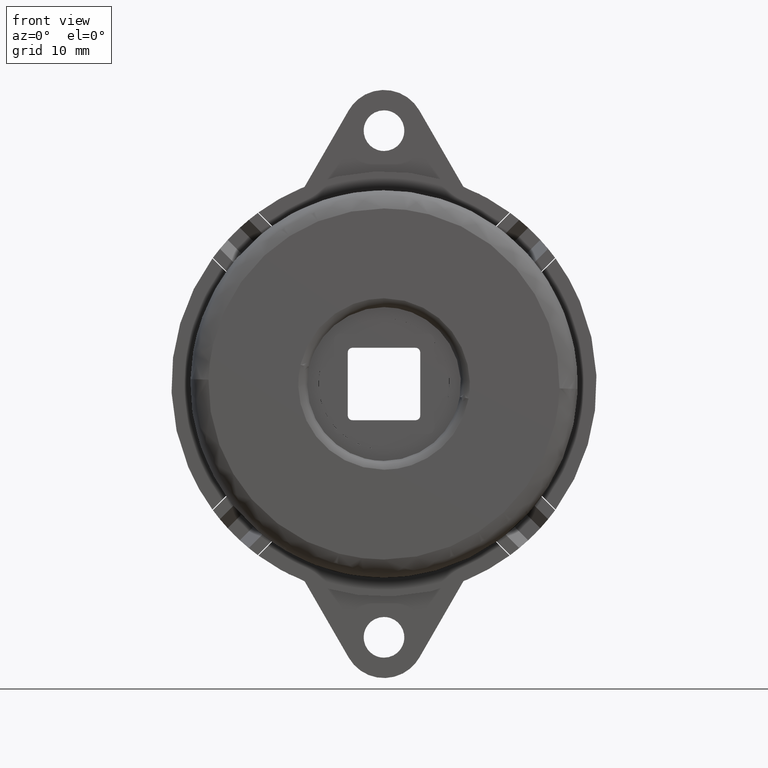
[diagram: clean part render]
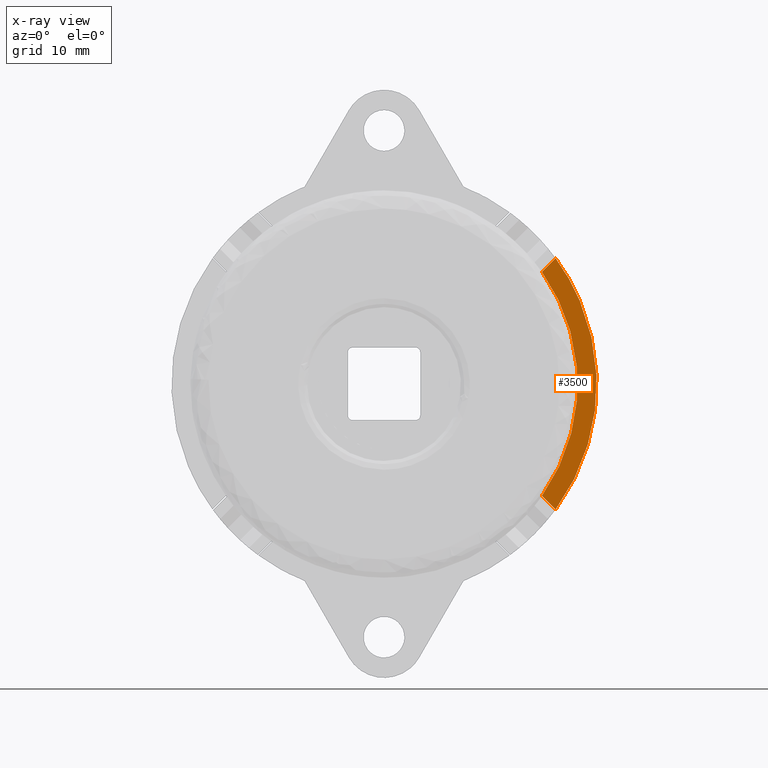
[diagram: x-ray — body ghosted, one internal face saturated and labeled with its STEP entity id]
A machine part, front view, then the same camera in x-ray: the body is ghosted and one INTERNAL B-rep face — a face not visible from any outside direction — is saturated and labeled: STEP entity #3500.
In plain terms, the highlighted face is a freeform B-spline surface patch.
Its self-contained STEP definition (entity closure, byte-faithful):
#1594=CARTESIAN_POINT('',(17.462018315590651,-1.600000000000155,-12.370849459353121));
#1595=VERTEX_POINT('',#1594);
#1601=CARTESIAN_POINT('',(17.462018315590651,-1.600000000000155,12.370849459353121));
#1602=VERTEX_POINT('',#1601);
#1603=CARTESIAN_POINT('',(17.462018315590630,-1.600000000000155,-12.370849459353110));
#1604=CARTESIAN_POINT('',(26.226063432261949,-1.600000000000156,-3.469447E-015));
#1605=CARTESIAN_POINT('',(17.462018315590640,-1.600000000000155,12.370849459353110));
#1613=(BOUNDED_CURVE()B_SPLINE_CURVE(2,(#1603,#1604,#1605),.UNSPECIFIED.,.F.,.U.)CURVE()GEOMETRIC_REPRESENTATION_ITEM()QUASI_UNIFORM_CURVE()RATIONAL_B_SPLINE_CURVE((1.0,0.815982164279936,1.0))REPRESENTATION_ITEM(''));
#1614=EDGE_CURVE('',#1595,#1602,#1613,.T.);
#3465=CARTESIAN_POINT('',(17.160421822320210,-1.600000000000110,15.261427136962659));
#3466=CARTESIAN_POINT('',(23.801597303026870,-1.600000000000110,15.261427136962659));
#3467=CARTESIAN_POINT('',(17.160421822320210,-1.600000000000110,-15.261426144524840));
#3468=CARTESIAN_POINT('',(23.801597303026870,-1.600000000000110,-15.261426144524840));
#3469=B_SPLINE_SURFACE_WITH_KNOTS('',1,1,((#3465,#3467),(#3466,#3468)),.UNSPECIFIED.,.F.,.F.,.U.,(2,2),(2,2),(0.0,6.641175480706668),(0.0,30.522853281487500),.UNSPECIFIED.);
#3470=ORIENTED_EDGE('',*,*,#1614,.F.);
#3471=CARTESIAN_POINT('',(18.966455291727549,-1.600000000000155,-13.875286435490240));
#3472=VERTEX_POINT('',#3471);
#3473=CARTESIAN_POINT('',(17.462018315590651,-1.600000000000155,-12.370849459353121));
#3474=CARTESIAN_POINT('',(18.966455291727549,-1.600000000000155,-13.875286435490240));
#3475=QUASI_UNIFORM_CURVE('',1,(#3473,#3474),.UNSPECIFIED.,.F.,.U.);
#3476=EDGE_CURVE('',#1595,#3472,#3475,.T.);
#3477=ORIENTED_EDGE('',*,*,#3476,.T.);
#3478=CARTESIAN_POINT('',(18.966455291727549,-1.600000000000155,13.875286435490240));
#3479=VERTEX_POINT('',#3478);
#3480=CARTESIAN_POINT('',(18.966455291727559,-1.600000000000155,-13.875286435490249));
#3481=CARTESIAN_POINT('',(29.117196202754354,-1.600000000000155,-5.204170E-015));
#3482=CARTESIAN_POINT('',(18.966455291727559,-1.600000000000155,13.875286435490240));
#3490=(BOUNDED_CURVE()B_SPLINE_CURVE(2,(#3480,#3481,#3482),.UNSPECIFIED.,.F.,.U.)CURVE()GEOMETRIC_REPRESENTATION_ITEM()QUASI_UNIFORM_CURVE()RATIONAL_B_SPLINE_CURVE((1.0,0.807083203903301,1.0))REPRESENTATION_ITEM(''));
#3491=EDGE_CURVE('',#3472,#3479,#3490,.T.);
#3492=ORIENTED_EDGE('',*,*,#3491,.T.);
#3493=CARTESIAN_POINT('',(17.462018315590651,-1.600000000000155,12.370849459353121));
#3494=CARTESIAN_POINT('',(18.966455291727549,-1.600000000000155,13.875286435490240));
#3495=QUASI_UNIFORM_CURVE('',1,(#3493,#3494),.UNSPECIFIED.,.F.,.U.);
#3496=EDGE_CURVE('',#1602,#3479,#3495,.T.);
#3497=ORIENTED_EDGE('',*,*,#3496,.F.);
#3498=EDGE_LOOP('',(#3470,#3477,#3492,#3497));
#3499=FACE_OUTER_BOUND('',#3498,.T.);
#3500=ADVANCED_FACE('',(#3499),#3469,.F.);